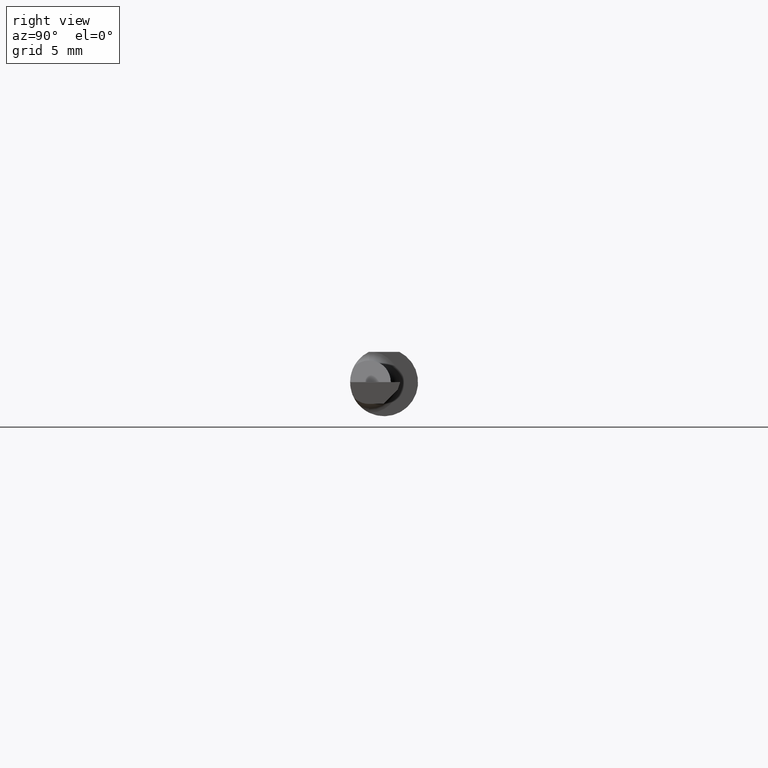
[diagram: clean part render]
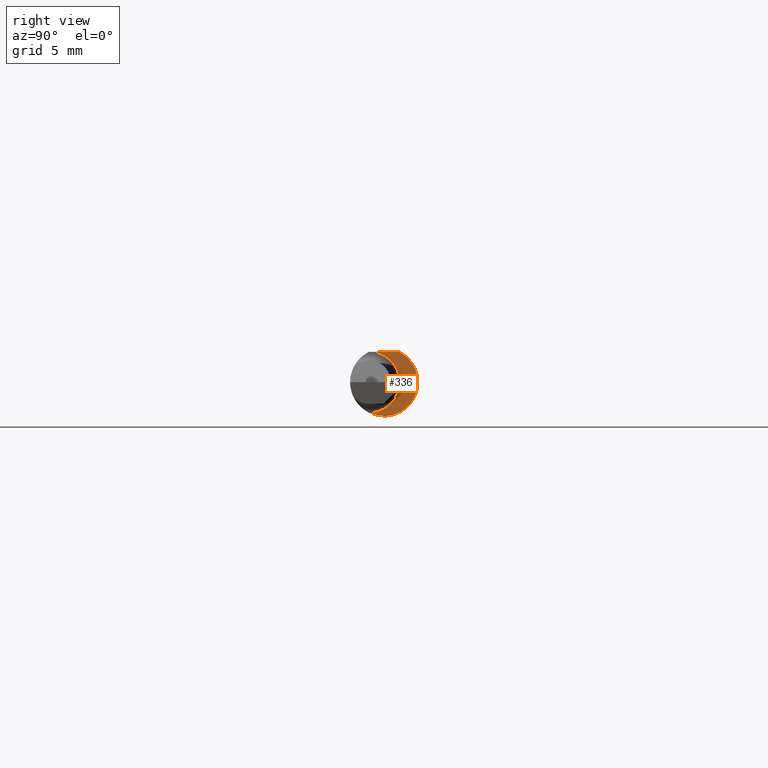
[diagram: same view with one face highlighted and labeled with its STEP entity id]
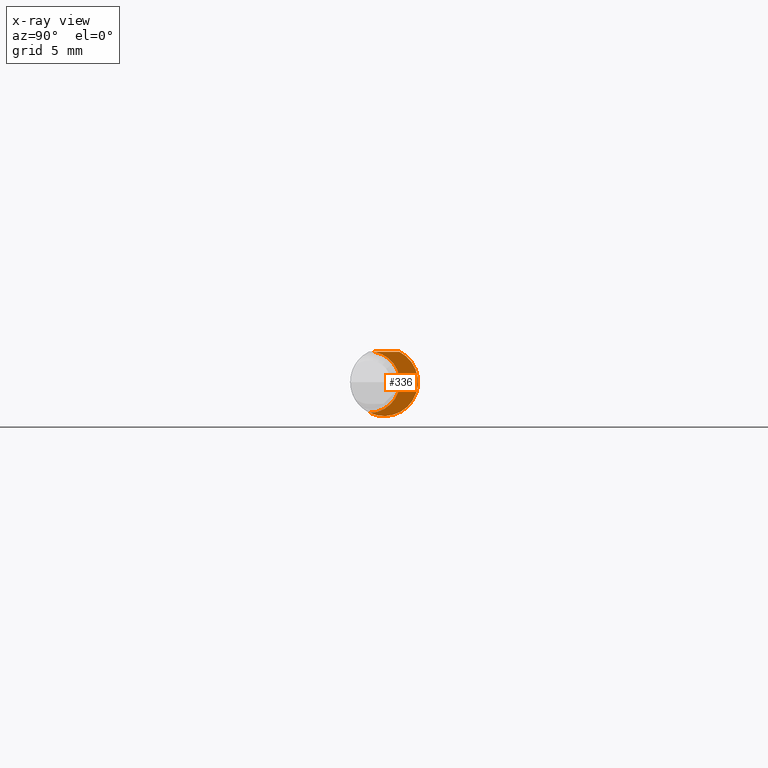
[diagram: x-ray of the same camera — body ghosted, the highlighted face saturated]
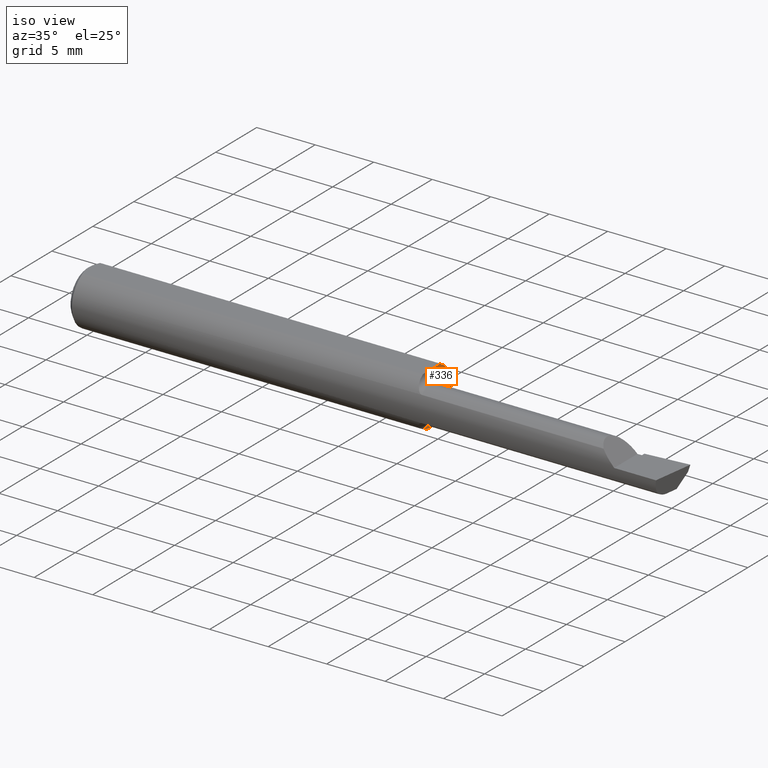
[diagram: same view with one face highlighted and labeled with its STEP entity id]
A machine part, right view. The second image highlights one B-rep face of the part: STEP entity #336.
The next image is the same camera in x-ray: the body ghosted, the highlighted face saturated — about 0% of this face is hidden behind the body in this view.
A second angle (iso view) of the same face is appended — the face is thin or edge-on in the first view.
In plain terms, the highlighted planar face has unit normal (1, 0, 0).
Its self-contained STEP definition (entity closure, byte-faithful):
#10 = CIRCLE ( 'NONE', #177, 0.09360000000000001652 ) ;
#16 = EDGE_CURVE ( 'NONE', #415, #374, #36, .T. ) ;
#36 = CIRCLE ( 'NONE', #549, 0.08489999999999991998 ) ;
#108 = CARTESIAN_POINT ( 'NONE',  ( 1.160000000000000142, 0.1436000000000000332, 0.08359999999999999376 ) ) ;
#111 = DIRECTION ( 'NONE',  ( -1.000000000000000000, -0.000000000000000000, -0.000000000000000000 ) ) ;
#165 = DIRECTION ( 'NONE',  ( 0.000000000000000000, -1.000000000000000000, 1.189000693621284344E-16 ) ) ;
#174 = DIRECTION ( 'NONE',  ( 0.000000000000000000, 0.000000000000000000, -1.000000000000000000 ) ) ;
#177 = AXIS2_PLACEMENT_3D ( 'NONE', #335, #393, #648 ) ;
#207 = VERTEX_POINT ( 'NONE', #213 ) ;
#213 = CARTESIAN_POINT ( 'NONE',  ( 1.160000000000000142, 0.04209513035969836975, 0.08360000000000000764 ) ) ;
#232 = CARTESIAN_POINT ( 'NONE',  ( 1.160000000000000142, -0.04150000000000000216, 0.000000000000000000 ) ) ;
#270 = AXIS2_PLACEMENT_3D ( 'NONE', #351, #452, #174 ) ;
#273 = LINE ( 'NONE', #108, #322 ) ;
#289 = EDGE_LOOP ( 'NONE', ( #628, #660, #644 ) ) ;
#322 = VECTOR ( 'NONE', #165, 39.37007874015748143 ) ;
#335 = CARTESIAN_POINT ( 'NONE',  ( 1.160000000000000142, 0.000000000000000000, 0.000000000000000000 ) ) ;
#336 = ADVANCED_FACE ( 'NONE', ( #448 ), #501, .T. ) ;
#341 = CARTESIAN_POINT ( 'NONE',  ( 1.160000000000000142, -0.02669966216601849310, 0.08360000000000000764 ) ) ;
#351 = CARTESIAN_POINT ( 'NONE',  ( 1.160000000000000142, 0.04339999999999992475, 0.000000000000000000 ) ) ;
#359 = EDGE_CURVE ( 'NONE', #374, #207, #10, .T. ) ;
#374 = VERTEX_POINT ( 'NONE', #495 ) ;
#393 = DIRECTION ( 'NONE',  ( 1.000000000000000000, 0.000000000000000000, 0.000000000000000000 ) ) ;
#415 = VERTEX_POINT ( 'NONE', #341 ) ;
#446 = DIRECTION ( 'NONE',  ( 0.000000000000000000, 0.000000000000000000, 1.000000000000000000 ) ) ;
#448 = FACE_OUTER_BOUND ( 'NONE', #289, .T. ) ;
#452 = DIRECTION ( 'NONE',  ( 1.000000000000000000, 0.000000000000000000, 0.000000000000000000 ) ) ;
#495 = CARTESIAN_POINT ( 'NONE',  ( 1.160000000000000142, -0.03946024096385560009, -0.08487549341873927566 ) ) ;
#501 = PLANE ( 'NONE',  #270 ) ;
#549 = AXIS2_PLACEMENT_3D ( 'NONE', #232, #111, #446 ) ;
#615 = EDGE_CURVE ( 'NONE', #207, #415, #273, .T. ) ;
#628 = ORIENTED_EDGE ( 'NONE', *, *, #359, .T. ) ;
#644 = ORIENTED_EDGE ( 'NONE', *, *, #16, .T. ) ;
#648 = DIRECTION ( 'NONE',  ( 0.000000000000000000, 0.000000000000000000, -1.000000000000000000 ) ) ;
#660 = ORIENTED_EDGE ( 'NONE', *, *, #615, .T. ) ;